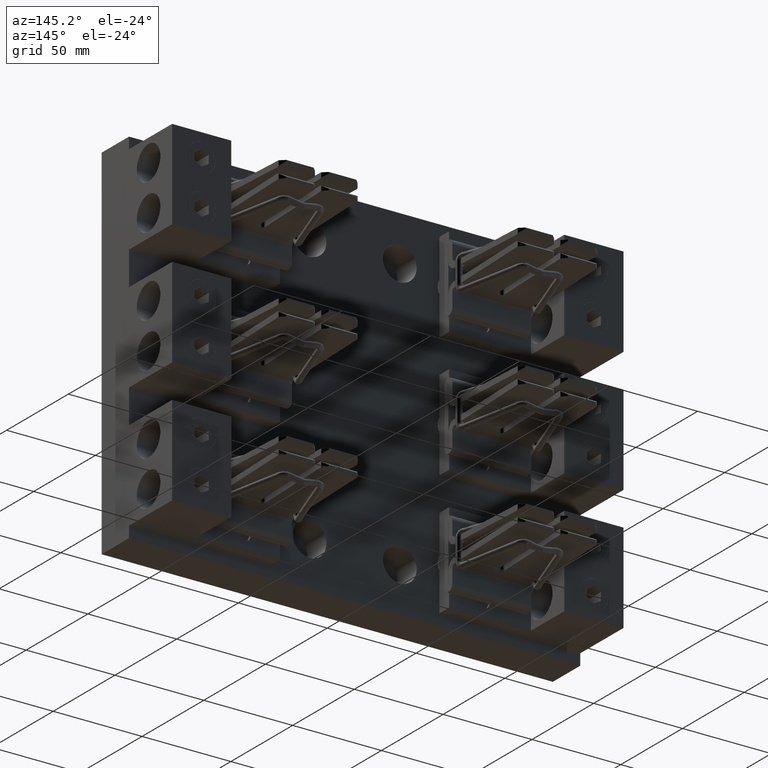
[diagram: clean part render]
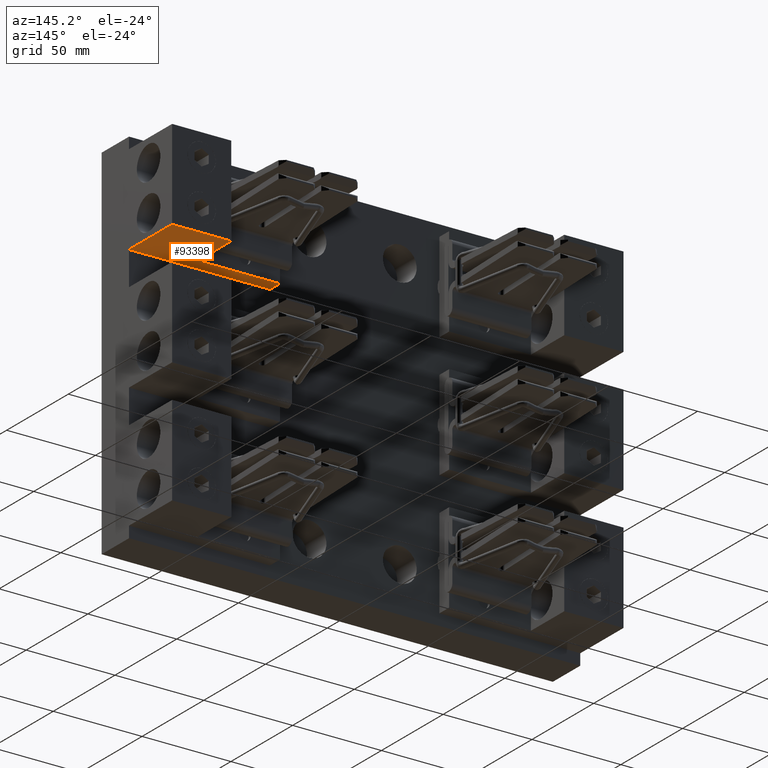
[diagram: same view with one face highlighted and labeled with its STEP entity id]
A machine part, auxiliary view. The second image highlights one B-rep face of the part: STEP entity #93398.
In plain terms, the highlighted planar face has unit normal (0, 0, -1).
Its self-contained STEP definition (entity closure, byte-faithful):
#13393 = EDGE_LOOP ( 'NONE', ( #64643, #64645, #64647, #64649, #64651, #64653 ) ) ;
#28397 = LINE ( 'NONE', #51236, #28404 ) ;
#28404 = VECTOR ( 'NONE', #51250, 39.37007874015748100 ) ;
#28418 = LINE ( 'NONE', #51283, #28427 ) ;
#28422 = LINE ( 'NONE', #51322, #28444 ) ;
#28427 = VECTOR ( 'NONE', #51292, 39.37007874015748100 ) ;
#28438 = LINE ( 'NONE', #51320, #28455 ) ;
#28444 = VECTOR ( 'NONE', #51334, 39.37007874015748100 ) ;
#28455 = VECTOR ( 'NONE', #51345, 39.37007874015748100 ) ;
#28468 = LINE ( 'NONE', #51371, #28478 ) ;
#28478 = VECTOR ( 'NONE', #51382, 39.37007874015748100 ) ;
#28483 = LINE ( 'NONE', #51393, #28489 ) ;
#28489 = VECTOR ( 'NONE', #51394, 39.37007874015748100 ) ;
#29642 = EDGE_CURVE ( 'NONE', #69417, #69439, #28397, .T. ) ;
#29662 = EDGE_CURVE ( 'NONE', #69448, #69447, #28418, .T. ) ;
#29679 = EDGE_CURVE ( 'NONE', #69447, #69449, #28422, .T. ) ;
#29685 = EDGE_CURVE ( 'NONE', #69449, #69453, #28438, .T. ) ;
#29700 = EDGE_CURVE ( 'NONE', #69453, #69417, #28468, .T. ) ;
#29708 = EDGE_CURVE ( 'NONE', #69439, #69448, #28483, .T. ) ;
#47714 = CARTESIAN_POINT ( 'NONE',  ( 3.690000000000001300, 1.186999999999999600, 1.750000000000000200 ) ) ;
#47736 = CARTESIAN_POINT ( 'NONE',  ( 3.690000000000001300, 2.250000000000000400, 1.750000000000000200 ) ) ;
#47744 = CARTESIAN_POINT ( 'NONE',  ( 5.002000000000000700, 0.8750000000000000000, 1.750000000000000400 ) ) ;
#47745 = CARTESIAN_POINT ( 'NONE',  ( 5.002000000000000700, 2.249999999999999600, 1.750000000000000400 ) ) ;
#47746 = CARTESIAN_POINT ( 'NONE',  ( 1.877000000000000700, 0.8749999999999997800, 1.750000000000000000 ) ) ;
#47750 = CARTESIAN_POINT ( 'NONE',  ( 1.877000000000000700, 1.186999999999999800, 1.750000000000000000 ) ) ;
#51236 = CARTESIAN_POINT ( 'NONE',  ( 3.690000000000001300, 1.186999999999999600, 1.750000000000000200 ) ) ;
#51250 = DIRECTION ( 'NONE',  ( -3.469446951953614800E-017, 1.000000000000000000, 7.792989036743702700E-019 ) ) ;
#51283 = CARTESIAN_POINT ( 'NONE',  ( 5.002000000000000700, 2.249999999999999600, 1.750000000000000400 ) ) ;
#51292 = DIRECTION ( 'NONE',  ( -1.490472088164152300E-017, -1.000000000000000000, -7.792989036743785500E-019 ) ) ;
#51320 = CARTESIAN_POINT ( 'NONE',  ( 1.877000000000000700, 0.8749999999999997800, 1.750000000000000000 ) ) ;
#51322 = CARTESIAN_POINT ( 'NONE',  ( 5.002000000000000700, 0.8750000000000000000, 1.750000000000000400 ) ) ;
#51334 = DIRECTION ( 'NONE',  ( -1.000000000000000000, -3.469446951953614200E-017, -1.665334536937734800E-016 ) ) ;
#51345 = DIRECTION ( 'NONE',  ( -3.469446951953614800E-017, 1.000000000000000000, 7.792989036743702700E-019 ) ) ;
#51371 = CARTESIAN_POINT ( 'NONE',  ( 1.877000000000000700, 1.186999999999999800, 1.750000000000000000 ) ) ;
#51382 = DIRECTION ( 'NONE',  ( 1.000000000000000000, -7.831634102917855600E-017, 1.665334536937734800E-016 ) ) ;
#51393 = CARTESIAN_POINT ( 'NONE',  ( 3.690000000000001300, 2.250000000000000400, 1.750000000000000200 ) ) ;
#51394 = DIRECTION ( 'NONE',  ( 1.000000000000000000, -1.735256519487765900E-016, 1.665334536937734800E-016 ) ) ;
#64643 = ORIENTED_EDGE ( 'NONE', *, *, #29662, .T. ) ;
#64645 = ORIENTED_EDGE ( 'NONE', *, *, #29679, .T. ) ;
#64647 = ORIENTED_EDGE ( 'NONE', *, *, #29685, .T. ) ;
#64649 = ORIENTED_EDGE ( 'NONE', *, *, #29700, .T. ) ;
#64651 = ORIENTED_EDGE ( 'NONE', *, *, #29642, .T. ) ;
#64653 = ORIENTED_EDGE ( 'NONE', *, *, #29708, .T. ) ;
#67904 = AXIS2_PLACEMENT_3D ( 'NONE', #75189, #75192, #75195 ) ;
#69417 = VERTEX_POINT ( 'NONE', #47714 ) ;
#69439 = VERTEX_POINT ( 'NONE', #47736 ) ;
#69447 = VERTEX_POINT ( 'NONE', #47744 ) ;
#69448 = VERTEX_POINT ( 'NONE', #47745 ) ;
#69449 = VERTEX_POINT ( 'NONE', #47746 ) ;
#69453 = VERTEX_POINT ( 'NONE', #47750 ) ;
#75099 = PLANE ( 'NONE',  #67904 ) ;
#75189 = CARTESIAN_POINT ( 'NONE',  ( 5.002000000000000700, 0.8750000000000000000, 1.750000000000000400 ) ) ;
#75192 = DIRECTION ( 'NONE',  ( 1.665334536937734800E-016, 7.792989036743760500E-019, -1.000000000000000000 ) ) ;
#75195 = DIRECTION ( 'NONE',  ( -1.000000000000000000, -3.469446951953614200E-017, -1.665334536937734800E-016 ) ) ;
#83097 = FACE_OUTER_BOUND ( 'NONE', #13393, .T. ) ;
#93398 = ADVANCED_FACE ( 'NONE', ( #83097 ), #75099, .T. ) ;